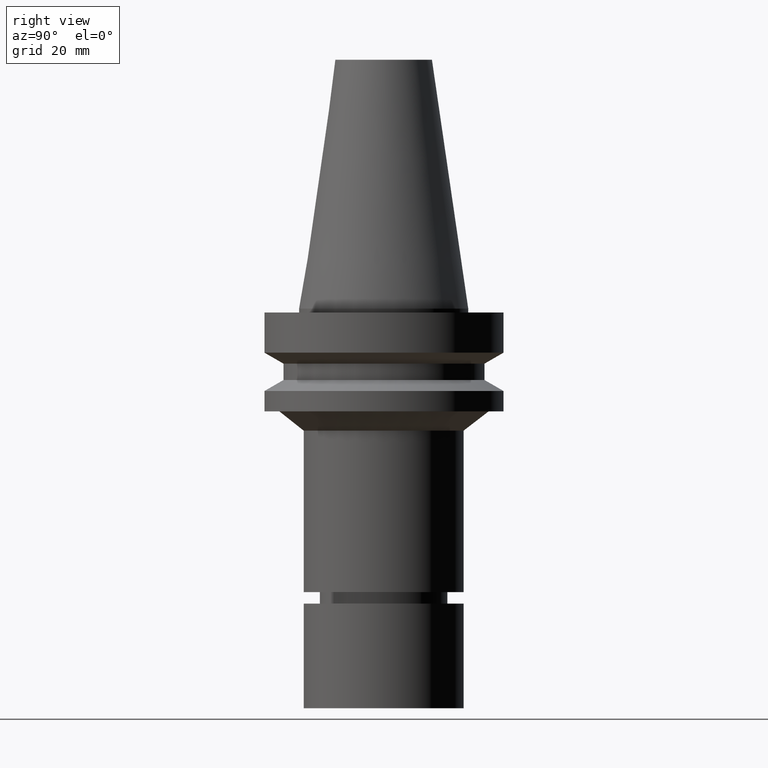
[diagram: clean part render]
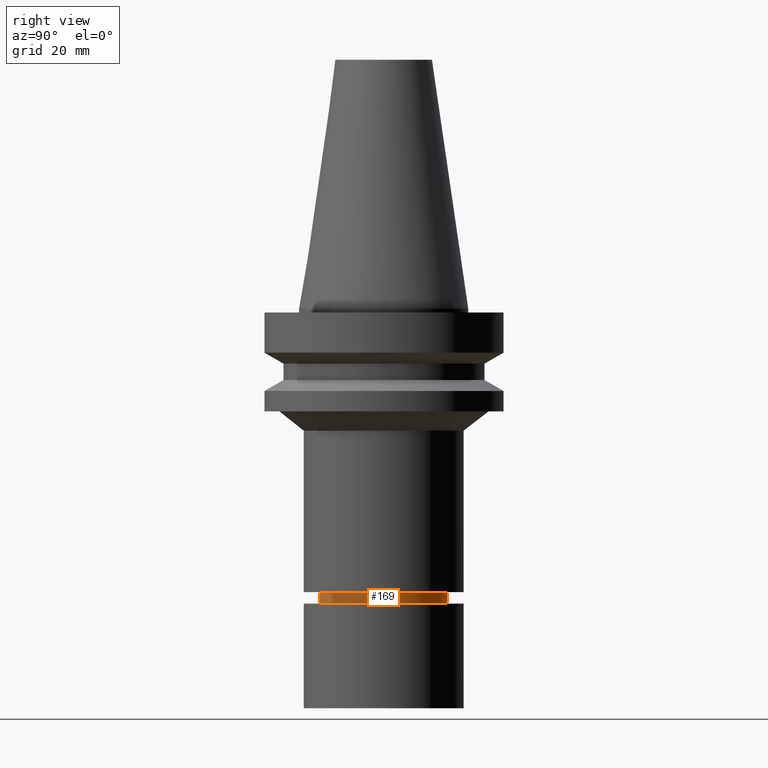
[diagram: same view with one face highlighted and labeled with its STEP entity id]
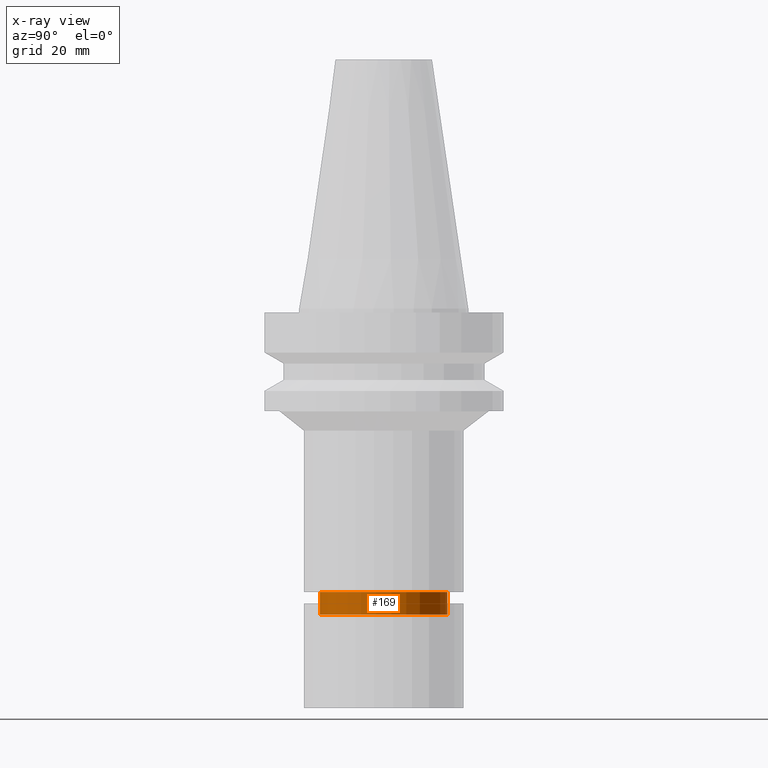
[diagram: x-ray of the same camera — body ghosted, the highlighted face saturated]
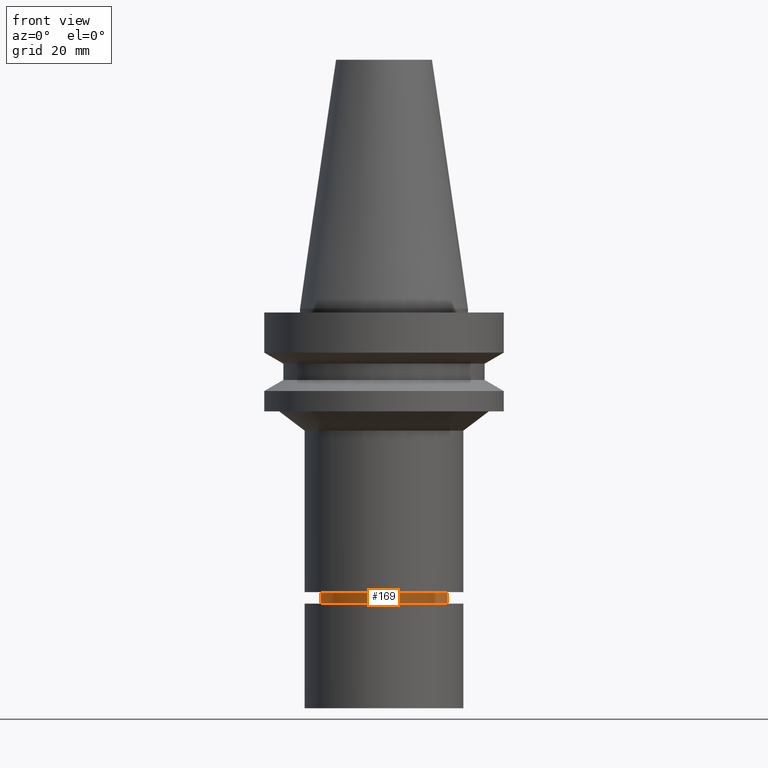
[diagram: same view with one face highlighted and labeled with its STEP entity id]
A machine part, right view. The second image highlights one B-rep face of the part: STEP entity #169.
The next image is the same camera in x-ray: the body ghosted, the highlighted face saturated — about 0% of this face is hidden behind the body in this view.
A second angle (front view) of the same face is appended — the face is thin or edge-on in the first view.
In plain terms, the highlighted cylindrical surface (bore or boss wall) has radius 16.75 mm, axis along (0, -0, -1).
Its self-contained STEP definition (entity closure, byte-faithful):
#124=EDGE_CURVE('Unnamed[1]',#274,#274,#275,.T.);
#140=EDGE_CURVE('Unnamed[1]',#300,#300,#301,.T.);
#169=ADVANCED_FACE('Unnamed[1]',(#345,#346),#347,.T.);
#274=VERTEX_POINT('',#468);
#275=CIRCLE('',#469,16.7500000000016);
#300=VERTEX_POINT('',#500);
#301=CIRCLE('',#501,16.7499999999907);
#345=FACE_BOUND('',#557,.T.);
#346=FACE_BOUND('',#558,.T.);
#347=CYLINDRICAL_SURFACE('',#559,16.7499999999961);
#468=CARTESIAN_POINT('',(4.92720259161817E-015,16.7500000000017,-80.4673248654009));
#469=AXIS2_PLACEMENT_3D('',#661,#662,#663);
#500=CARTESIAN_POINT('',(4.56180932682384E-015,16.7499999999907,-74.4999999999992));
#501=AXIS2_PLACEMENT_3D('',#691,#692,#693);
#557=EDGE_LOOP('',(#740));
#558=EDGE_LOOP('',(#741));
#559=AXIS2_PLACEMENT_3D('',#742,#743,#744);
#661=CARTESIAN_POINT('',(4.92720259161817E-015,5.79524143180028E-014,-80.4673248654009));
#662=DIRECTION('',(6.12323399573676E-017,-1.308387073385E-016,-1.0));
#663=DIRECTION('',(3.18440747656434E-033,1.0,-1.308387073385E-016));
#691=CARTESIAN_POINT('',(4.56180932682384E-015,5.87331713896611E-014,-74.4999999999992));
#692=DIRECTION('',(6.12323399573677E-017,-1.30838707338585E-016,-1.0));
#693=DIRECTION('',(3.18440747656642E-033,1.0,-1.30838707338585E-016));
#740=ORIENTED_EDGE('',*,*,#124,.F.);
#741=ORIENTED_EDGE('',*,*,#140,.T.);
#742=CARTESIAN_POINT('',(4.74450595922101E-015,5.83427928538319E-014,-77.4836624327001));
#743=DIRECTION('',(6.12323399573677E-017,-1.30838707338543E-016,-1.0));
#744=DIRECTION('',(3.18440747657074E-033,1.0,-1.30838707338543E-016));